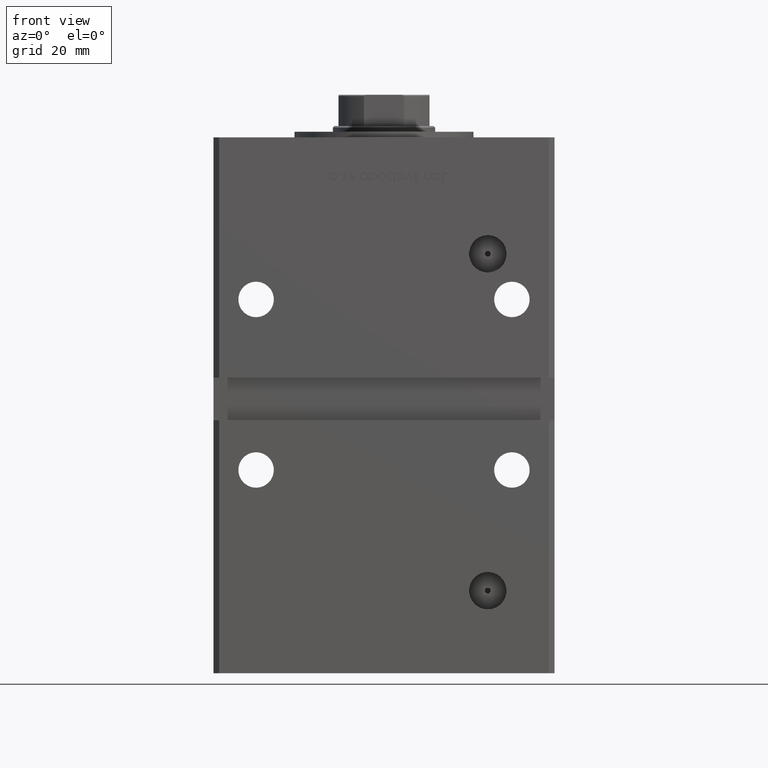
[diagram: clean part render]
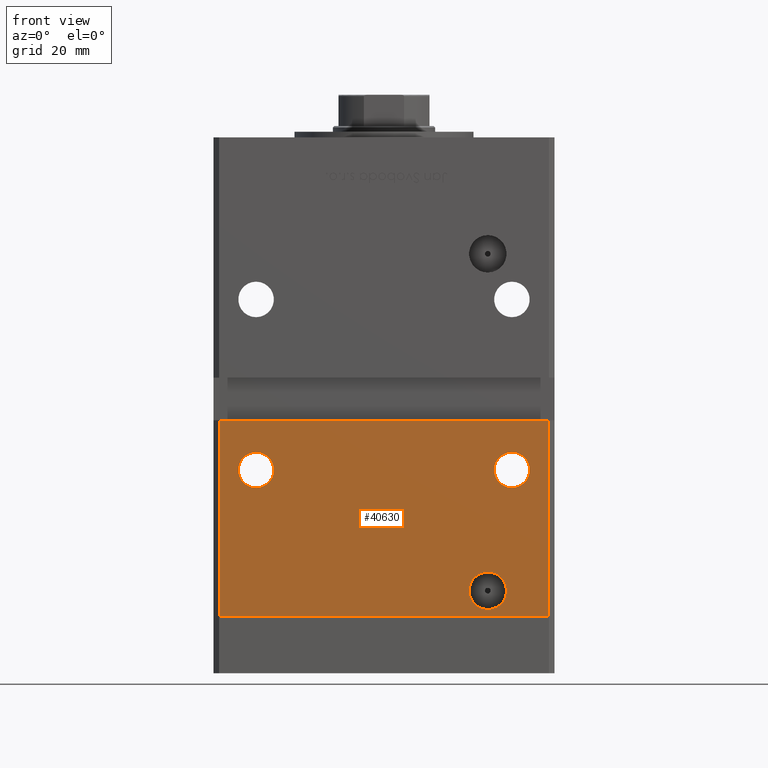
[diagram: same view with one face highlighted and labeled with its STEP entity id]
A machine part, front view. The second image highlights one B-rep face of the part: STEP entity #40630.
In plain terms, the highlighted planar face has unit normal (0, 1, 0).
Its self-contained STEP definition (entity closure, byte-faithful):
#1705 = VECTOR ( 'NONE', #36103, 1000.000000000000000 ) ;
#2222 = DIRECTION ( 'NONE',  ( 0.000000000000000000, 0.000000000000000000, 1.000000000000000000 ) ) ;
#2357 = CARTESIAN_POINT ( 'NONE',  ( 36.49999999999998579, -50.99999999999999289, 2.420000000000013252 ) ) ;
#3927 = EDGE_LOOP ( 'NONE', ( #49472, #11889 ) ) ;
#5622 = ORIENTED_EDGE ( 'NONE', *, *, #51522, .T. ) ;
#6635 = EDGE_CURVE ( 'NONE', #32658, #37146, #36573, .T. ) ;
#6708 = DIRECTION ( 'NONE',  ( 0.000000000000000000, 1.000000000000000000, 0.000000000000000000 ) ) ;
#7676 = LINE ( 'NONE', #24007, #1705 ) ;
#7861 = CIRCLE ( 'NONE', #34393, 6.579999999999994742 ) ;
#7938 = EDGE_CURVE ( 'NONE', #26953, #8907, #7676, .T. ) ;
#8691 = VERTEX_POINT ( 'NONE', #2357 ) ;
#8907 = VERTEX_POINT ( 'NONE', #40390 ) ;
#10270 = CARTESIAN_POINT ( 'NONE',  ( 45.00000000000000000, -50.99999999999999289, 51.50000000000000000 ) ) ;
#11288 = DIRECTION ( 'NONE',  ( 0.000000000000000000, 0.000000000000000000, 1.000000000000000000 ) ) ;
#11889 = ORIENTED_EDGE ( 'NONE', *, *, #15272, .T. ) ;
#12448 = VECTOR ( 'NONE', #22537, 1000.000000000000000 ) ;
#12893 = VERTEX_POINT ( 'NONE', #13551 ) ;
#13551 = CARTESIAN_POINT ( 'NONE',  ( -57.99999999999997868, -50.99999999999999289, 0.000000000000000000 ) ) ;
#13757 = EDGE_CURVE ( 'NONE', #8691, #22538, #7861, .T. ) ;
#14505 = DIRECTION ( 'NONE',  ( 0.000000000000000000, 1.000000000000000000, 0.000000000000000000 ) ) ;
#14871 = CARTESIAN_POINT ( 'NONE',  ( 45.00000000000000000, -50.99999999999999289, 57.74999999999999289 ) ) ;
#14998 = CARTESIAN_POINT ( 'NONE',  ( -57.99999999999997868, -50.99999999999999289, 148.5000000000000000 ) ) ;
#15272 = EDGE_CURVE ( 'NONE', #33141, #21480, #45453, .T. ) ;
#16299 = AXIS2_PLACEMENT_3D ( 'NONE', #37293, #49637, #30235 ) ;
#16427 = CARTESIAN_POINT ( 'NONE',  ( -45.00000000000000000, -50.99999999999999289, 51.50000000000000000 ) ) ;
#17219 = VECTOR ( 'NONE', #46830, 1000.000000000000000 ) ;
#17344 = CARTESIAN_POINT ( 'NONE',  ( 57.99999999999997868, -50.99999999999999289, 148.5000000000000000 ) ) ;
#17492 = EDGE_LOOP ( 'NONE', ( #38958, #45847 ) ) ;
#18489 = DIRECTION ( 'NONE',  ( 0.000000000000000000, -0.000000000000000000, 1.000000000000000000 ) ) ;
#18702 = CIRCLE ( 'NONE', #44394, 6.579999999999994742 ) ;
#19013 = FACE_BOUND ( 'NONE', #26880, .T. ) ;
#21358 = AXIS2_PLACEMENT_3D ( 'NONE', #10270, #50748, #2222 ) ;
#21480 = VERTEX_POINT ( 'NONE', #14871 ) ;
#21743 = CARTESIAN_POINT ( 'NONE',  ( -57.99999999999997868, -50.99999999999999289, 0.000000000000000000 ) ) ;
#22111 = CARTESIAN_POINT ( 'NONE',  ( 36.49999999999998579, -50.99999999999999289, 9.000000000000007105 ) ) ;
#22498 = FACE_BOUND ( 'NONE', #17492, .T. ) ;
#22537 = DIRECTION ( 'NONE',  ( 1.000000000000000000, 0.000000000000000000, 0.000000000000000000 ) ) ;
#22538 = VERTEX_POINT ( 'NONE', #23168 ) ;
#22648 = EDGE_LOOP ( 'NONE', ( #35378, #25048, #29690, #33806 ) ) ;
#23168 = CARTESIAN_POINT ( 'NONE',  ( 36.49999999999998579, -50.99999999999999289, 15.58000000000000362 ) ) ;
#23580 = CARTESIAN_POINT ( 'NONE',  ( 45.00000000000000000, -50.99999999999999289, 51.50000000000000000 ) ) ;
#23746 = VECTOR ( 'NONE', #30562, 1000.000000000000000 ) ;
#24007 = CARTESIAN_POINT ( 'NONE',  ( -59.99999999999998579, -50.99999999999999289, 68.99999999999998579 ) ) ;
#25048 = ORIENTED_EDGE ( 'NONE', *, *, #7938, .F. ) ;
#26510 = LINE ( 'NONE', #35118, #23746 ) ;
#26788 = PLANE ( 'NONE',  #32479 ) ;
#26880 = EDGE_LOOP ( 'NONE', ( #37525, #5622 ) ) ;
#26953 = VERTEX_POINT ( 'NONE', #38906 ) ;
#28143 = EDGE_CURVE ( 'NONE', #12893, #34164, #42943, .T. ) ;
#29666 = LINE ( 'NONE', #17344, #17219 ) ;
#29690 = ORIENTED_EDGE ( 'NONE', *, *, #39733, .T. ) ;
#29716 = AXIS2_PLACEMENT_3D ( 'NONE', #16427, #48875, #40558 ) ;
#30235 = DIRECTION ( 'NONE',  ( 0.000000000000000000, 0.000000000000000000, 1.000000000000000000 ) ) ;
#30562 = DIRECTION ( 'NONE',  ( -0.000000000000000000, -0.000000000000000000, -1.000000000000000000 ) ) ;
#30883 = CIRCLE ( 'NONE', #16299, 6.249999999999998224 ) ;
#32479 = AXIS2_PLACEMENT_3D ( 'NONE', #14998, #6708, #18489 ) ;
#32658 = VERTEX_POINT ( 'NONE', #37807 ) ;
#33141 = VERTEX_POINT ( 'NONE', #38190 ) ;
#33806 = ORIENTED_EDGE ( 'NONE', *, *, #28143, .T. ) ;
#34164 = VERTEX_POINT ( 'NONE', #34412 ) ;
#34393 = AXIS2_PLACEMENT_3D ( 'NONE', #22111, #50295, #43039 ) ;
#34412 = CARTESIAN_POINT ( 'NONE',  ( 57.99999999999997868, -50.99999999999999289, 0.000000000000000000 ) ) ;
#35118 = CARTESIAN_POINT ( 'NONE',  ( -57.99999999999997868, -50.99999999999999289, 148.5000000000000000 ) ) ;
#35127 = FACE_OUTER_BOUND ( 'NONE', #22648, .T. ) ;
#35378 = ORIENTED_EDGE ( 'NONE', *, *, #52706, .F. ) ;
#35804 = CARTESIAN_POINT ( 'NONE',  ( 36.49999999999998579, -50.99999999999999289, 9.000000000000007105 ) ) ;
#36057 = DIRECTION ( 'NONE',  ( 0.000000000000000000, -1.000000000000000000, 0.000000000000000000 ) ) ;
#36103 = DIRECTION ( 'NONE',  ( 1.000000000000000000, 0.000000000000000000, 0.000000000000000000 ) ) ;
#36375 = CARTESIAN_POINT ( 'NONE',  ( -45.00000000000000000, -50.99999999999999289, 45.25000000000000000 ) ) ;
#36573 = CIRCLE ( 'NONE', #29716, 6.249999999999998224 ) ;
#37146 = VERTEX_POINT ( 'NONE', #36375 ) ;
#37293 = CARTESIAN_POINT ( 'NONE',  ( -45.00000000000000000, -50.99999999999999289, 51.50000000000000000 ) ) ;
#37525 = ORIENTED_EDGE ( 'NONE', *, *, #6635, .T. ) ;
#37807 = CARTESIAN_POINT ( 'NONE',  ( -45.00000000000000000, -50.99999999999999289, 57.74999999999999289 ) ) ;
#38190 = CARTESIAN_POINT ( 'NONE',  ( 45.00000000000000000, -50.99999999999999289, 45.25000000000000000 ) ) ;
#38906 = CARTESIAN_POINT ( 'NONE',  ( -57.99999999999997868, -50.99999999999999289, 68.99999999999998579 ) ) ;
#38958 = ORIENTED_EDGE ( 'NONE', *, *, #13757, .F. ) ;
#39558 = DIRECTION ( 'NONE',  ( 0.000000000000000000, 0.000000000000000000, -1.000000000000000000 ) ) ;
#39733 = EDGE_CURVE ( 'NONE', #26953, #12893, #26510, .T. ) ;
#40390 = CARTESIAN_POINT ( 'NONE',  ( 57.99999999999997868, -50.99999999999999289, 68.99999999999998579 ) ) ;
#40558 = DIRECTION ( 'NONE',  ( 0.000000000000000000, 0.000000000000000000, 1.000000000000000000 ) ) ;
#40630 = ADVANCED_FACE ( 'NONE', ( #19013, #47992, #22498, #35127 ), #26788, .F. ) ;
#41610 = EDGE_CURVE ( 'NONE', #21480, #33141, #51344, .T. ) ;
#42943 = LINE ( 'NONE', #21743, #12448 ) ;
#43039 = DIRECTION ( 'NONE',  ( 0.000000000000000000, 0.000000000000000000, -1.000000000000000000 ) ) ;
#44394 = AXIS2_PLACEMENT_3D ( 'NONE', #35804, #36057, #39558 ) ;
#45453 = CIRCLE ( 'NONE', #49742, 6.249999999999998224 ) ;
#45847 = ORIENTED_EDGE ( 'NONE', *, *, #45908, .F. ) ;
#45908 = EDGE_CURVE ( 'NONE', #22538, #8691, #18702, .T. ) ;
#46830 = DIRECTION ( 'NONE',  ( -0.000000000000000000, -0.000000000000000000, -1.000000000000000000 ) ) ;
#47992 = FACE_BOUND ( 'NONE', #3927, .T. ) ;
#48875 = DIRECTION ( 'NONE',  ( 0.000000000000000000, 1.000000000000000000, 0.000000000000000000 ) ) ;
#49472 = ORIENTED_EDGE ( 'NONE', *, *, #41610, .T. ) ;
#49637 = DIRECTION ( 'NONE',  ( 0.000000000000000000, 1.000000000000000000, 0.000000000000000000 ) ) ;
#49742 = AXIS2_PLACEMENT_3D ( 'NONE', #23580, #14505, #11288 ) ;
#50295 = DIRECTION ( 'NONE',  ( 0.000000000000000000, -1.000000000000000000, 0.000000000000000000 ) ) ;
#50748 = DIRECTION ( 'NONE',  ( 0.000000000000000000, 1.000000000000000000, 0.000000000000000000 ) ) ;
#51344 = CIRCLE ( 'NONE', #21358, 6.249999999999998224 ) ;
#51522 = EDGE_CURVE ( 'NONE', #37146, #32658, #30883, .T. ) ;
#52706 = EDGE_CURVE ( 'NONE', #8907, #34164, #29666, .T. ) ;